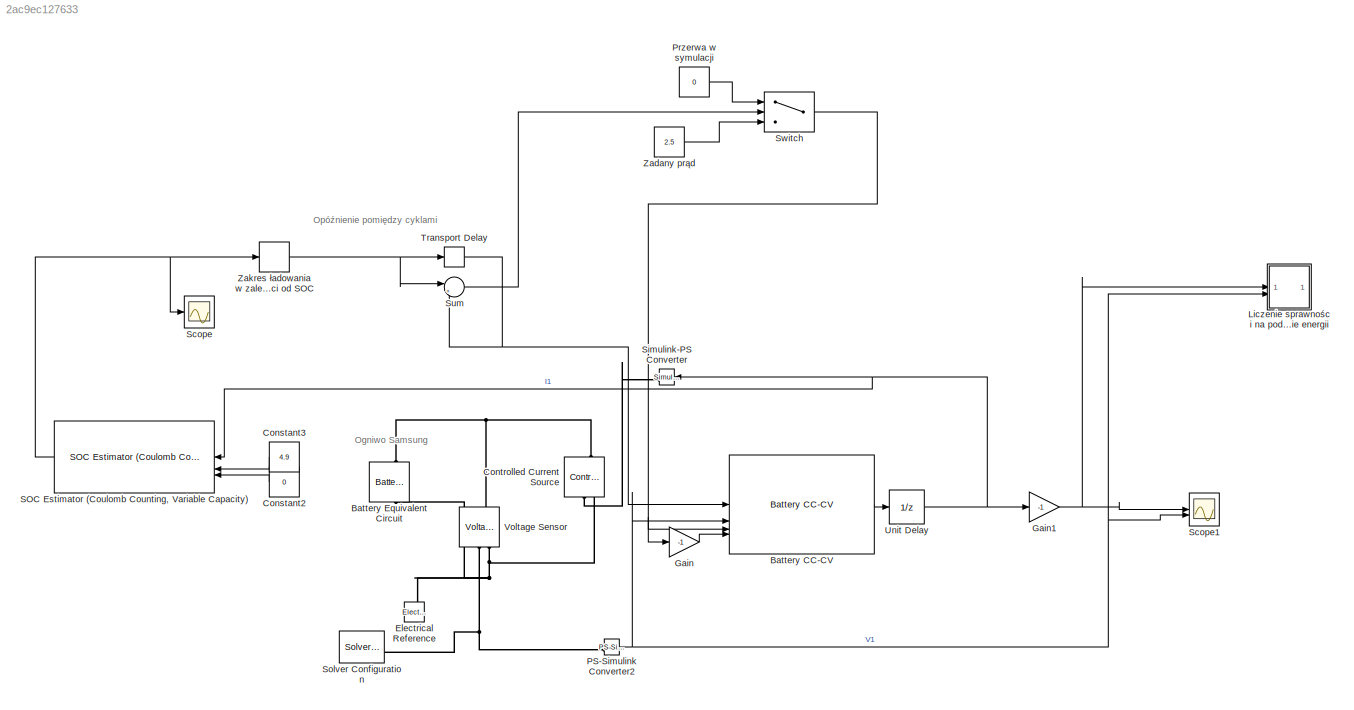
MODEL slx_2ac9ec127633
KIND model
CONFIG AbsTol = auto
CONFIG EnableMultiTasking = off
CONFIG FixedStep = auto
CONFIG MaxStep = auto
CONFIG MinStep = auto
CONFIG RelTol = 1e-3
CONFIG SampleTimeConstraint = Unconstrained
CONFIG SolverName = VariableStepAuto
CONFIG StartTime = 0.0
CONFIG StopTime = 150000
BLOCK [Reference] Battery CC-CV  REF=BatteryCurrentManagement/Battery CC-CV
  LibrarySourceBlock = batt_sl_lib/Current Management/Battery CC-CV
  SourceBlock = BatteryCurrentManagement/Battery CC-CV
  SourceType = Battery CC-CV
BLOCK [Reference] Battery Equivalent Circuit  REF=batt_lib/Cells/Battery Equivalent
Circuit
  NameLocation = right
  SourceBlock = batt_lib/Cells/Battery Equivalent\nCircuit
  SourceType = Battery Equivalent\nCircuit
BLOCK [Constant] Constant2
  NameLocation = top
  Value = 0
BLOCK [Constant] Constant3
  NameLocation = top
  Value = 4.9
BLOCK [Reference] Controlled Current Source  REF=fl_lib/Electrical/Electrical Sources/Controlled Current
Source
  NameLocation = right
  SourceBlock = fl_lib/Electrical/Electrical Sources/Controlled Current\nSource
  SourceType = Controlled Current\nSource
BLOCK [Reference] Electrical Reference  REF=fl_lib/Electrical/Electrical Elements/Electrical Reference
  LibrarySourceBlock = ee_lib/Connectors &\nReferences/Electrical Reference
  NameLocation = right
  SourceBlock = fl_lib/Electrical/Electrical Elements/Electrical Reference
  SourceType = Electrical Reference
BLOCK [Gain] Gain
  Gain = -1
BLOCK [Gain] Gain1
  Gain = -1
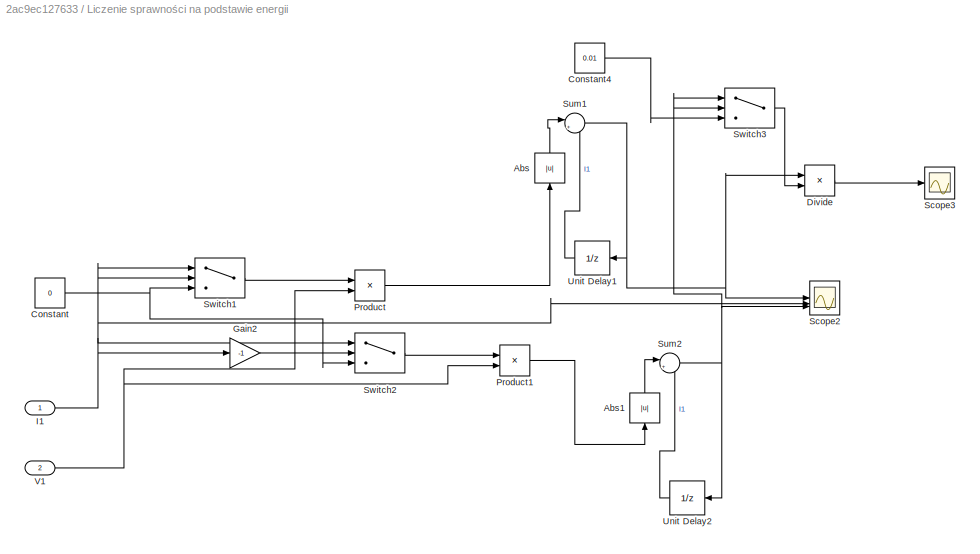
BLOCK [SubSystem] Liczenie sprawności na podstawie energii
BLOCK [Abs] Liczenie sprawności na podstawie energii/Abs
  NameLocation = right
  SaturateOnIntegerOverflow = off
BLOCK [Abs] Liczenie sprawności na podstawie energii/Abs1
  NameLocation = right
  SaturateOnIntegerOverflow = off
BLOCK [Constant] Liczenie sprawności na podstawie energii/Constant
  Value = 0
BLOCK [Constant] Liczenie sprawności na podstawie energii/Constant4
  Value = 0.01
BLOCK [Product] Liczenie sprawności na podstawie energii/Divide
  Inputs = */
BLOCK [Gain] Liczenie sprawności na podstawie energii/Gain2
  Gain = -1
BLOCK [Inport] Liczenie sprawności na podstawie energii/I1
BLOCK [Product] Liczenie sprawności na podstawie energii/Product
BLOCK [Product] Liczenie sprawności na podstawie energii/Product1
BLOCK [Scope] Liczenie sprawności na podstawie energii/Scope2
  Floating = off
  NumInputPorts = 3
  ScopeSpecificationString = Simulink.scopes.TimeScopeBlockCfg('CurrentConfiguration', extmgr.ConfigurationSet(extmgr.Configuration('Core','General UI',true),extmgr.Configuration('Core','Source UI',true),extmgr.Configuration('Sources','WiredSimulink',true,'DataLoggingVariableName','ScopeData2'),extmgr.Configuration('Visuals','Time Domain',true,'SerializedDisplays',{struct('MinYLimReal','-46474.88024','MaxYLimReal','418273.922...<+3797ch>
BLOCK [Scope] Liczenie sprawności na podstawie energii/Scope3
  Floating = off
  NumInputPorts = 1
  ScopeSpecificationString = Simulink.scopes.TimeScopeBlockCfg('CurrentConfiguration', extmgr.ConfigurationSet(extmgr.Configuration('Core','General UI',true),extmgr.Configuration('Core','Source UI',true),extmgr.Configuration('Sources','WiredSimulink',true,'DataLoggingVariableName','ScopeData3'),extmgr.Configuration('Visuals','Time Domain',true,'SerializedDisplays',{struct('MinYLimReal','-0.12325','MaxYLimReal','1.10927','YLab...<+2476ch>
BLOCK [Sum] Liczenie sprawności na podstawie energii/Sum1
  Inputs = |++
BLOCK [Sum] Liczenie sprawności na podstawie energii/Sum2
  Inputs = |++
BLOCK [Switch] Liczenie sprawności na podstawie energii/Switch1
  Criteria = u2 > Threshold
  InputSameDT = off
  SaturateOnIntegerOverflow = off
BLOCK [Switch] Liczenie sprawności na podstawie energii/Switch2
  Criteria = u2 > Threshold
  InputSameDT = off
  SaturateOnIntegerOverflow = off
BLOCK [Switch] Liczenie sprawności na podstawie energii/Switch3
  Criteria = u2 ~= 0
  InputSameDT = off
  SaturateOnIntegerOverflow = off
BLOCK [UnitDelay] Liczenie sprawności na podstawie energii/Unit Delay1
  HasFrameUpgradeWarning = on
  NameLocation = top
BLOCK [UnitDelay] Liczenie sprawności na podstawie energii/Unit Delay2
  HasFrameUpgradeWarning = on
  NameLocation = top
BLOCK [Inport] Liczenie sprawności na podstawie energii/V1
  Port = 2
BLOCK [Reference] PS-Simulink Converter2  REF=nesl_utility/PS-Simulink
Converter
  SourceBlock = nesl_utility/PS-Simulink\nConverter
  SourceType = PS-Simulink\nConverter
BLOCK [Constant] Przerwa w symulacji
  NameLocation = top
  Value = 0
BLOCK [Reference] SOC Estimator (Coulomb Counting, Variable Capacity)  REF=BatteryEstimators/SOC Estimator
(Coulomb Counting, Variable Capacity)
  LibrarySourceBlock = batt_sl_lib/Estimators/SOC Estimator\n(Coulomb Counting, Variable Capacity)
  SourceBlock = BatteryEstimators/SOC Estimator\n(Coulomb Counting, Variable Capacity)
  SourceType = SOC Estimator (Coulomb Counting, Variable Capacity)
BLOCK [Scope] Scope
  Floating = off
  NumInputPorts = 1
  ScopeSpecificationString = Simulink.scopes.TimeScopeBlockCfg('CurrentConfiguration', extmgr.ConfigurationSet(extmgr.Configuration('Core','General UI',true),extmgr.Configuration('Core','Source UI',true),extmgr.Configuration('Sources','WiredSimulink',true),extmgr.Configuration('Visuals','Time Domain',true,'SerializedDisplays',{struct('MinYLimReal','-0.12252','MaxYLimReal','1.10268','YLabelReal','','MinYLimMag','0.00000','MaxY...<+1486ch>
BLOCK [Scope] Scope1
  Floating = off
  NumInputPorts = 2
  ScopeSpecificationString = Simulink.scopes.TimeScopeBlockCfg('CurrentConfiguration', extmgr.ConfigurationSet(extmgr.Configuration('Core','General UI',true),extmgr.Configuration('Core','Source UI',true),extmgr.Configuration('Sources','WiredSimulink',true,'DataLoggingVariableName','ScopeData1'),extmgr.Configuration('Visuals','Time Domain',true,'SerializedDisplays',{struct('MinYLimReal','-3.125','MaxYLimReal','3.125','YLabelRe...<+2450ch>
BLOCK [Reference] Simulink-PS Converter  REF=nesl_utility/Simulink-PS
Converter
  NameLocation = top
  SourceBlock = nesl_utility/Simulink-PS\nConverter
  SourceType = Simulink-PS\nConverter
BLOCK [Reference] Solver Configuration  REF=nesl_utility/Solver
Configuration
  SourceBlock = nesl_utility/Solver\nConfiguration
  SourceType = Solver\nConfiguration
BLOCK [Sum] Sum
  Inputs = |+-
BLOCK [Switch] Switch
  Criteria = u2 ~= 0
  InputSameDT = off
  SaturateOnIntegerOverflow = off
BLOCK [TransportDelay] Transport Delay
  DelayTime = 5000
BLOCK [UnitDelay] Unit Delay
  HasFrameUpgradeWarning = on
  SampleTime = -1
BLOCK [Reference] Voltage Sensor  REF=fl_lib/Electrical/Electrical Sensors/Voltage Sensor
  NameLocation = right
  SourceBlock = fl_lib/Electrical/Electrical Sensors/Voltage Sensor
  SourceType = Voltage Sensor
BLOCK [Constant] Zadany prąd
  Value = 2.5
BLOCK [Relay] Zakres ładowania w zależności od SOC
  NameLocation = top
  OffOutputValue = 1
  OffSwitchValue = 0.01
  OnOutputValue = 0
  OnSwitchValue = 0.98
ANNOTATION (root): Ogniwo Samsung
ANNOTATION (root): Opóźnienie pomiędzy cyklami
LINE Battery CC-CV:1 -> Unit Delay:1
LINE Constant2:1 -> SOC Estimator (Coulomb Counting, Variable Capacity):3
LINE Constant3:1 -> SOC Estimator (Coulomb Counting, Variable Capacity):2
NET Gain1:1 -> Liczenie sprawności na podstawie energii:1, Scope1:1
LINE Gain:1 -> Battery CC-CV:4
LINE Liczenie sprawności na podstawie energii/Abs1:1 -> Liczenie sprawności na podstawie energii/Sum2:1
LINE Liczenie sprawności na podstawie energii/Abs:1 -> Liczenie sprawności na podstawie energii/Sum1:1
LINE Liczenie sprawności na podstawie energii/Constant4:1 -> Liczenie sprawności na podstawie energii/Switch3:3
NET Liczenie sprawności na podstawie energii/Constant:1 -> Liczenie sprawności na podstawie energii/Switch1:3, Liczenie sprawności na podstawie energii/Switch2:3
LINE Liczenie sprawności na podstawie energii/Divide:1 -> Liczenie sprawności na podstawie energii/Scope3:1
LINE Liczenie sprawności na podstawie energii/Gain2:1 -> Liczenie sprawności na podstawie energii/Switch2:2
NET Liczenie sprawności na podstawie energii/I1:1 -> Liczenie sprawności na podstawie energii/Gain2:1, Liczenie sprawności na podstawie energii/Scope2:2, Liczenie sprawności na podstawie energii/Switch1:1, Liczenie sprawności na podstawie energii/Switch1:2, Liczenie sprawności na podstawie energii/Switch2:1
LINE Liczenie sprawności na podstawie energii/Product1:1 -> Liczenie sprawności na podstawie energii/Abs1:1
LINE Liczenie sprawności na podstawie energii/Product:1 -> Liczenie sprawności na podstawie energii/Abs:1
NET Liczenie sprawności na podstawie energii/Sum1:1 -> Liczenie sprawności na podstawie energii/Divide:1, Liczenie sprawności na podstawie energii/Scope2:1, Liczenie sprawności na podstawie energii/Unit Delay1:1
NET Liczenie sprawności na podstawie energii/Sum2:1 -> Liczenie sprawności na podstawie energii/Scope2:3, Liczenie sprawności na podstawie energii/Switch3:1, Liczenie sprawności na podstawie energii/Switch3:2, Liczenie sprawności na podstawie energii/Unit Delay2:1
LINE Liczenie sprawności na podstawie energii/Switch1:1 -> Liczenie sprawności na podstawie energii/Product:1
LINE Liczenie sprawności na podstawie energii/Switch2:1 -> Liczenie sprawności na podstawie energii/Product1:1
LINE Liczenie sprawności na podstawie energii/Switch3:1 -> Liczenie sprawności na podstawie energii/Divide:2
LINE Liczenie sprawności na podstawie energii/Unit Delay1:1 -> Liczenie sprawności na podstawie energii/Sum1:2
LINE Liczenie sprawności na podstawie energii/Unit Delay2:1 -> Liczenie sprawności na podstawie energii/Sum2:2
NET Liczenie sprawności na podstawie energii/V1:1 -> Liczenie sprawności na podstawie energii/Product1:2, Liczenie sprawności na podstawie energii/Product:2
NET PS-Simulink Converter2:1 -> Battery CC-CV:2, Liczenie sprawności na podstawie energii:2, Scope1:2
LINE Przerwa w symulacji:1 -> Switch:1
NET SOC Estimator (Coulomb Counting, Variable Capacity):1 -> Scope:1, Zakres ładowania w zależności od SOC:1
LINE Sum:1 -> Switch:2
NET Switch:1 -> Battery CC-CV:3, Gain:1
NET Transport Delay:1 -> Battery CC-CV:1, Sum:2
NET Unit Delay:1 -> Gain1:1, SOC Estimator (Coulomb Counting, Variable Capacity):1, Simulink-PS Converter:1
LINE Zadany prąd:1 -> Switch:3
NET Zakres ładowania w zależności od SOC:1 -> Sum:1, Transport Delay:1
PNET net1: Battery Equivalent Circuit:LConn1 -- Controlled Current Source:LConn1 -- Voltage Sensor:LConn1
PNET net2: Battery Equivalent Circuit:RConn1 -- Controlled Current Source:RConn2 -- Electrical Reference:LConn1 -- Voltage Sensor:RConn2
PLINE Controlled Current Source:RConn1 -- Simulink-PS Converter:RConn1
PNET net3: PS-Simulink Converter2:LConn1 -- Solver Configuration:RConn1 -- Voltage Sensor:RConn1
note: NET lines group one-source signal fan-out (src -> all destinations, sorted); 1:1 wires keep LINE; PNET lines group multi-terminal physical nets as a canonical sorted terminal list (undirected conserving connections); 2-terminal nets keep the pairwise PLINE form
